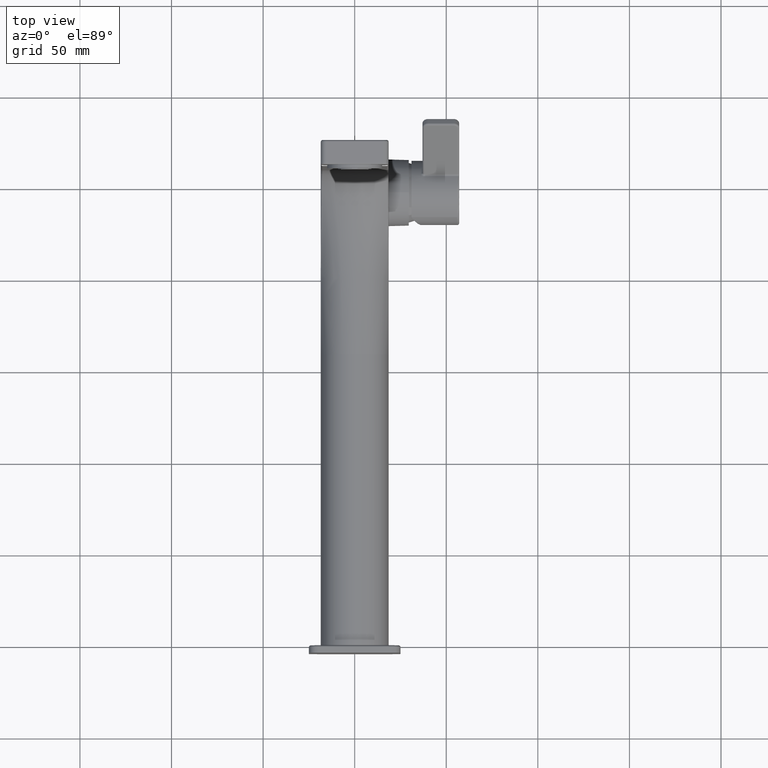
[diagram: clean part render]
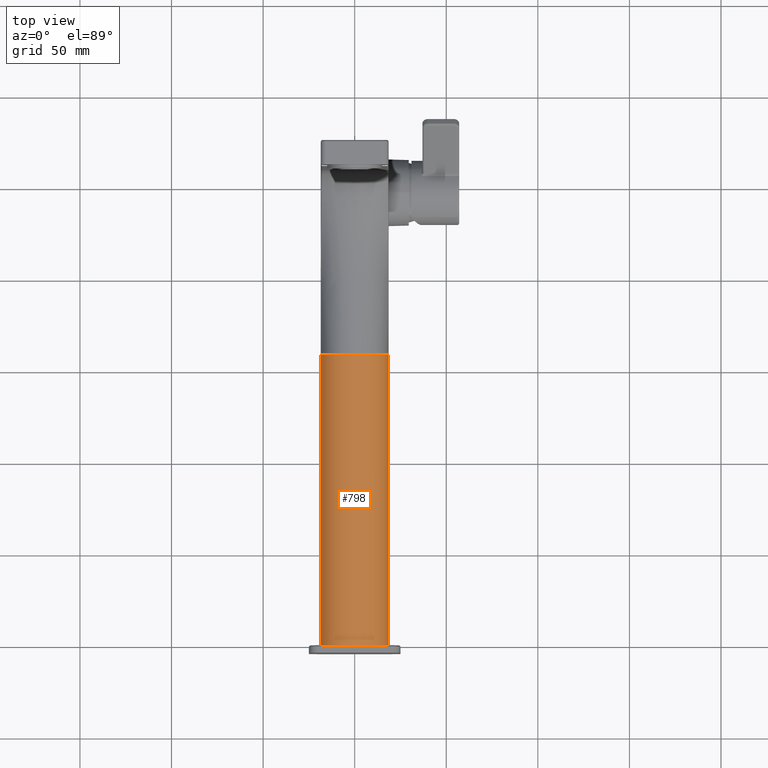
[diagram: same view with one face highlighted and labeled with its STEP entity id]
A machine part, top view. The second image highlights one B-rep face of the part: STEP entity #798.
In plain terms, the highlighted cylindrical surface (edge-blend (fillet) strip) has radius 18.5 mm, axis along (0, 1, 0).
Its self-contained STEP definition (entity closure, byte-faithful):
#134=DIRECTION('',(0.E0,1.E0,0.E0));
#135=VECTOR('',#134,1.59E2);
#136=CARTESIAN_POINT('',(1.85E1,-1.754152378908E-14,0.E0));
#137=LINE('',#136,#135);
#151=CARTESIAN_POINT('',(0.E0,0.E0,0.E0));
#152=DIRECTION('',(0.E0,-1.E0,0.E0));
#153=DIRECTION('',(1.E0,0.E0,0.E0));
#154=AXIS2_PLACEMENT_3D('',#151,#152,#153);
#156=DIRECTION('',(0.E0,1.E0,0.E0));
#157=VECTOR('',#156,1.59E2);
#158=CARTESIAN_POINT('',(-1.85E1,-1.754152378908E-14,0.E0));
#159=LINE('',#158,#157);
#160=CARTESIAN_POINT('',(0.E0,1.59E2,0.E0));
#161=DIRECTION('',(0.E0,1.E0,0.E0));
#162=DIRECTION('',(-1.E0,0.E0,0.E0));
#163=AXIS2_PLACEMENT_3D('',#160,#161,#162);
#192=CARTESIAN_POINT('',(1.85E1,1.59E2,0.E0));
#264=CARTESIAN_POINT('',(-1.85E1,1.59E2,0.E0));
#528=VERTEX_POINT('',#264);
#540=VERTEX_POINT('',#192);
#544=CARTESIAN_POINT('',(1.85E1,0.E0,0.E0));
#545=CARTESIAN_POINT('',(-1.85E1,0.E0,0.E0));
#546=VERTEX_POINT('',#544);
#547=VERTEX_POINT('',#545);
#785=CARTESIAN_POINT('',(0.E0,-2.E0,0.E0));
#786=DIRECTION('',(0.E0,1.E0,0.E0));
#787=DIRECTION('',(1.E0,0.E0,0.E0));
#788=AXIS2_PLACEMENT_3D('',#785,#786,#787);
#789=CYLINDRICAL_SURFACE('',#788,1.85E1);
#791=ORIENTED_EDGE('',*,*,#790,.T.);
#792=ORIENTED_EDGE('',*,*,#773,.T.);
#794=ORIENTED_EDGE('',*,*,#793,.T.);
#795=ORIENTED_EDGE('',*,*,#762,.F.);
#796=EDGE_LOOP('',(#791,#792,#794,#795));
#797=FACE_OUTER_BOUND('',#796,.F.);
#798=ADVANCED_FACE('',(#797),#789,.T.);
#155=CIRCLE('',#154,1.85E1);
#164=CIRCLE('',#163,1.85E1);
#762=EDGE_CURVE('',#546,#540,#137,.T.);
#773=EDGE_CURVE('',#547,#528,#159,.T.);
#790=EDGE_CURVE('',#546,#547,#155,.T.);
#793=EDGE_CURVE('',#528,#540,#164,.T.);